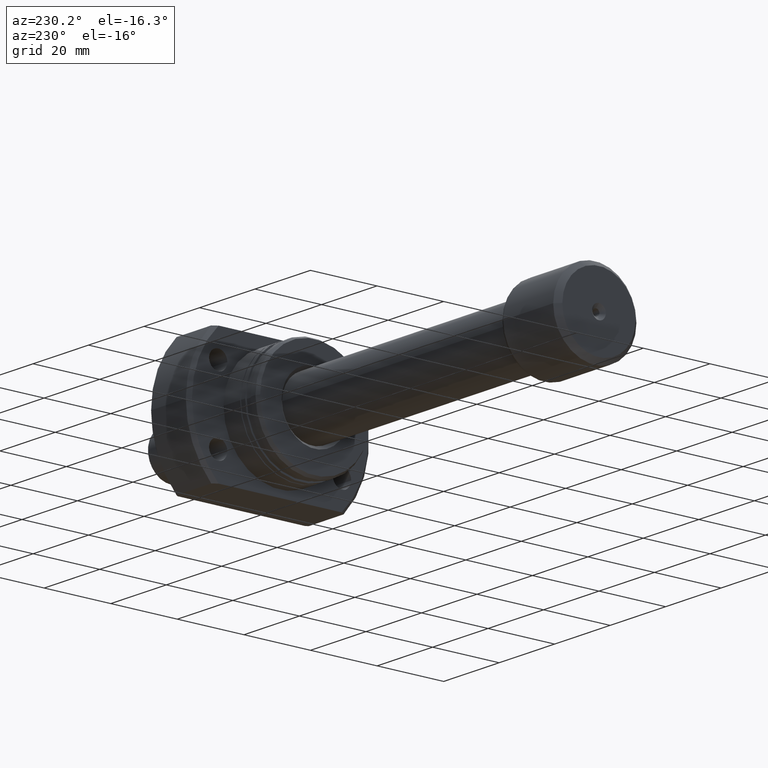
[diagram: clean part render]
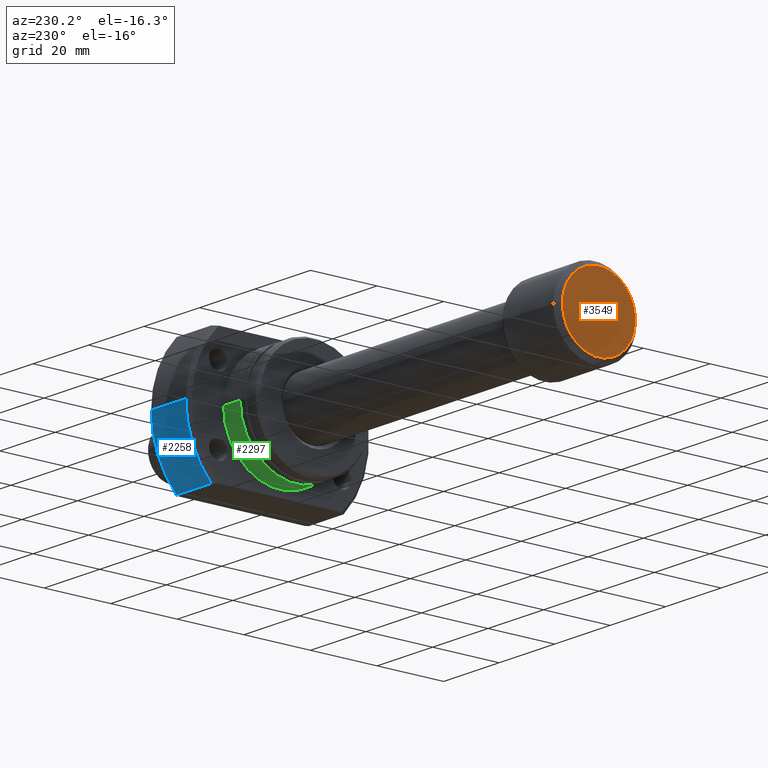
[diagram: same view with three faces highlighted in distinct colors, each labeled with its STEP entity id]
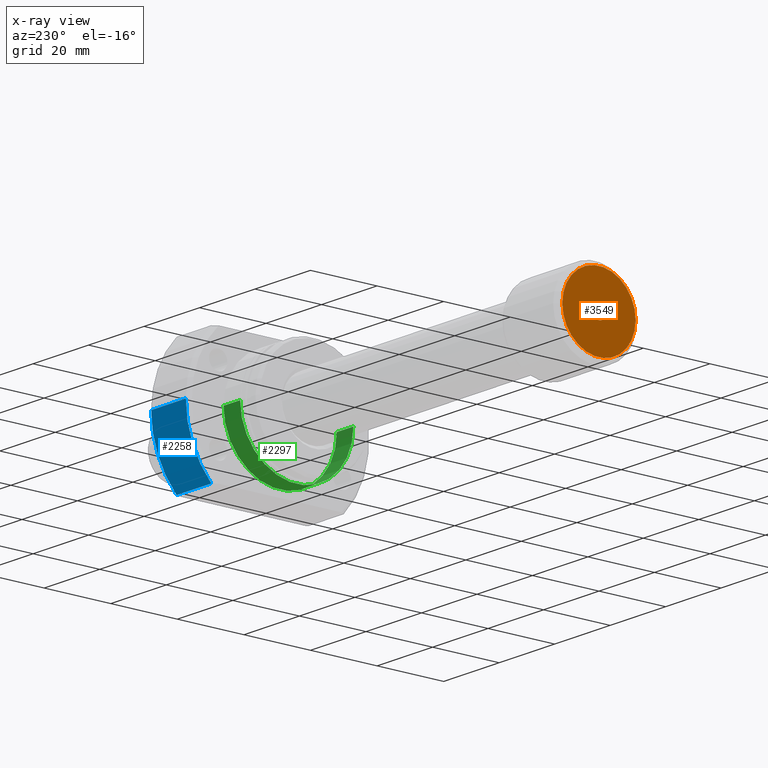
[diagram: x-ray of the same camera — body ghosted, the three highlighted faces saturated]
A machine part, auxiliary view with three faces highlighted in distinct colors.
The next image is the same camera in x-ray (body ghosted, the three faces saturated) — at least one of them is partly hidden behind the body in this view.
Their STEP definitions:

[orange] entity #3549 — the highlighted planar face has unit normal (-1, -0, 0).
#232 = DIRECTION ( 'NONE',  ( 1.069542322069063644E-17, -1.000000000000000000, 0.000000000000000000 ) ) ;
#282 = VERTEX_POINT ( 'NONE', #3673 ) ;
#332 = AXIS2_PLACEMENT_3D ( 'NONE', #2576, #2773, #232 ) ;
#531 = EDGE_CURVE ( 'NONE', #1279, #3342, #1863, .T. ) ;
#683 = AXIS2_PLACEMENT_3D ( 'NONE', #1072, #1295, #3312 ) ;
#810 = DIRECTION ( 'NONE',  ( 1.069542322069065647E-17, -1.000000000000000000, 0.000000000000000000 ) ) ;
#859 = DIRECTION ( 'NONE',  ( -1.000000000000000000, -1.069542322069065801E-17, -0.000000000000000000 ) ) ;
#902 = CARTESIAN_POINT ( 'NONE',  ( 6.147309118172456842E-16, 6.574807268726511244E-33, 0.000000000000000000 ) ) ;
#941 = DIRECTION ( 'NONE',  ( -1.000000000000000000, -1.069542322069065801E-17, 0.000000000000000000 ) ) ;
#1030 = CIRCLE ( 'NONE', #1986, 11.00000000000000178 ) ;
#1072 = CARTESIAN_POINT ( 'NONE',  ( 1.229461823634491368E-15, 1.314961453745302249E-32, 0.000000000000000000 ) ) ;
#1157 = FACE_OUTER_BOUND ( 'NONE', #2336, .T. ) ;
#1202 = CIRCLE ( 'NONE', #3285, 2.075000000000021494 ) ;
#1244 = EDGE_LOOP ( 'NONE', ( #2691, #2263 ) ) ;
#1279 = VERTEX_POINT ( 'NONE', #2607 ) ;
#1295 = DIRECTION ( 'NONE',  ( -1.000000000000000000, -1.069542322069065801E-17, -0.000000000000000000 ) ) ;
#1859 = EDGE_CURVE ( 'NONE', #3342, #1279, #1202, .T. ) ;
#1863 = CIRCLE ( 'NONE', #332, 2.075000000000021494 ) ;
#1986 = AXIS2_PLACEMENT_3D ( 'NONE', #2430, #859, #810 ) ;
#2079 = DIRECTION ( 'NONE',  ( 1.069542322069065801E-17, -1.000000000000000000, 0.000000000000000000 ) ) ;
#2183 = EDGE_CURVE ( 'NONE', #282, #2383, #1030, .T. ) ;
#2263 = ORIENTED_EDGE ( 'NONE', *, *, #1859, .T. ) ;
#2319 = ORIENTED_EDGE ( 'NONE', *, *, #2770, .T. ) ;
#2336 = EDGE_LOOP ( 'NONE', ( #3323, #2319 ) ) ;
#2383 = VERTEX_POINT ( 'NONE', #3589 ) ;
#2419 = AXIS2_PLACEMENT_3D ( 'NONE', #902, #941, #2079 ) ;
#2430 = CARTESIAN_POINT ( 'NONE',  ( 1.229461823634491368E-15, 1.314961453745302249E-32, 0.000000000000000000 ) ) ;
#2576 = CARTESIAN_POINT ( 'NONE',  ( 6.147309118172456842E-16, 0.000000000000000000, 0.000000000000000000 ) ) ;
#2607 = CARTESIAN_POINT ( 'NONE',  ( 6.147309118172456842E-16, 0.000000000000000000, 2.075000000000021494 ) ) ;
#2610 = PLANE ( 'NONE',  #2419 ) ;
#2642 = CARTESIAN_POINT ( 'NONE',  ( 6.147309118172456842E-16, 0.000000000000000000, 0.000000000000000000 ) ) ;
#2680 = DIRECTION ( 'NONE',  ( 1.069542322069063644E-17, -1.000000000000000000, 0.000000000000000000 ) ) ;
#2691 = ORIENTED_EDGE ( 'NONE', *, *, #531, .T. ) ;
#2770 = EDGE_CURVE ( 'NONE', #2383, #282, #2824, .T. ) ;
#2773 = DIRECTION ( 'NONE',  ( 1.000000000000000000, 1.069542322069065801E-17, 0.000000000000000000 ) ) ;
#2824 = CIRCLE ( 'NONE', #683, 11.00000000000000178 ) ;
#3134 = CARTESIAN_POINT ( 'NONE',  ( 6.147309118172456842E-16, 2.541142108230784202E-16, -2.075000000000021494 ) ) ;
#3200 = DIRECTION ( 'NONE',  ( 1.000000000000000000, 1.069542322069065801E-17, 0.000000000000000000 ) ) ;
#3285 = AXIS2_PLACEMENT_3D ( 'NONE', #2642, #3200, #2680 ) ;
#3312 = DIRECTION ( 'NONE',  ( 1.069542322069065647E-17, -1.000000000000000000, 0.000000000000000000 ) ) ;
#3323 = ORIENTED_EDGE ( 'NONE', *, *, #2183, .T. ) ;
#3342 = VERTEX_POINT ( 'NONE', #3134 ) ;
#3444 = FACE_BOUND ( 'NONE', #1244, .T. ) ;
#3549 = ADVANCED_FACE ( 'NONE', ( #3444, #1157 ), #2610, .T. ) ;
#3589 = CARTESIAN_POINT ( 'NONE',  ( 1.347111479062088602E-15, -11.00000000000000178, 1.438959988998140160E-15 ) ) ;
#3673 = CARTESIAN_POINT ( 'NONE',  ( 1.111812168206894135E-15, 11.00000000000000178, 0.000000000000000000 ) ) ;

[blue] entity #2258 — the highlighted cylindrical surface (partial cylindrical patch) has radius 27.5 mm, axis along (1, 0, 0).
#54 = VERTEX_POINT ( 'NONE', #420 ) ;
#108 = ORIENTED_EDGE ( 'NONE', *, *, #1424, .T. ) ;
#121 = DIRECTION ( 'NONE',  ( 0.000000000000000000, 1.000000000000000000, 0.000000000000000000 ) ) ;
#172 = CARTESIAN_POINT ( 'NONE',  ( 13.49999999999999112, 27.49999999999991473, 0.000000000000000000 ) ) ;
#267 = LINE ( 'NONE', #3621, #3585 ) ;
#302 = ORIENTED_EDGE ( 'NONE', *, *, #3068, .F. ) ;
#305 = CARTESIAN_POINT ( 'NONE',  ( 26.50000000000000711, 27.49999999999991473, 0.000000000000000000 ) ) ;
#311 = CARTESIAN_POINT ( 'NONE',  ( 26.00000000000007461, 19.88089535207093306, -18.99999999999999645 ) ) ;
#346 = CARTESIAN_POINT ( 'NONE',  ( 26.00000000000008882, 27.49999999999991473, 0.000000000000000000 ) ) ;
#416 = CARTESIAN_POINT ( 'NONE',  ( 13.49999999999999112, 1.247753342527491952E-16, 0.000000000000000000 ) ) ;
#420 = CARTESIAN_POINT ( 'NONE',  ( 13.49999999999998757, 19.88089535207129543, -18.99999999999999645 ) ) ;
#786 = EDGE_LOOP ( 'NONE', ( #108, #1063, #302, #2490 ) ) ;
#803 = AXIS2_PLACEMENT_3D ( 'NONE', #3504, #2118, #121 ) ;
#1063 = ORIENTED_EDGE ( 'NONE', *, *, #3289, .T. ) ;
#1234 = DIRECTION ( 'NONE',  ( 0.000000000000000000, 1.000000000000000000, 0.000000000000000000 ) ) ;
#1254 = DIRECTION ( 'NONE',  ( 1.000000000000000000, 9.242617352055502386E-18, -0.000000000000000000 ) ) ;
#1424 = EDGE_CURVE ( 'NONE', #54, #2094, #3524, .T. ) ;
#1459 = CYLINDRICAL_SURFACE ( 'NONE', #803, 27.49999999999991473 ) ;
#1523 = DIRECTION ( 'NONE',  ( 1.000000000000000000, 9.242617352055502386E-18, -0.000000000000000000 ) ) ;
#1526 = EDGE_CURVE ( 'NONE', #54, #2819, #267, .T. ) ;
#2020 = VERTEX_POINT ( 'NONE', #346 ) ;
#2082 = CARTESIAN_POINT ( 'NONE',  ( 26.00000000000008882, 2.403080511534438786E-16, 0.000000000000000000 ) ) ;
#2094 = VERTEX_POINT ( 'NONE', #172 ) ;
#2118 = DIRECTION ( 'NONE',  ( 1.000000000000000000, 9.242617352055502386E-18, -0.000000000000000000 ) ) ;
#2256 = LINE ( 'NONE', #305, #2294 ) ;
#2258 = ADVANCED_FACE ( 'NONE', ( #3423 ), #1459, .T. ) ;
#2294 = VECTOR ( 'NONE', #3422, 1000.000000000000000 ) ;
#2400 = DIRECTION ( 'NONE',  ( 0.000000000000000000, 1.000000000000000000, 0.000000000000000000 ) ) ;
#2490 = ORIENTED_EDGE ( 'NONE', *, *, #1526, .F. ) ;
#2655 = CIRCLE ( 'NONE', #2950, 27.49999999999991473 ) ;
#2819 = VERTEX_POINT ( 'NONE', #311 ) ;
#2950 = AXIS2_PLACEMENT_3D ( 'NONE', #2082, #1523, #1234 ) ;
#3050 = DIRECTION ( 'NONE',  ( 1.000000000000000000, -2.886466111666351885E-14, -0.000000000000000000 ) ) ;
#3068 = EDGE_CURVE ( 'NONE', #2819, #2020, #2655, .T. ) ;
#3289 = EDGE_CURVE ( 'NONE', #2094, #2020, #2256, .T. ) ;
#3348 = AXIS2_PLACEMENT_3D ( 'NONE', #416, #1254, #2400 ) ;
#3422 = DIRECTION ( 'NONE',  ( 1.000000000000000000, 9.242617352055502386E-18, -0.000000000000000000 ) ) ;
#3423 = FACE_OUTER_BOUND ( 'NONE', #786, .T. ) ;
#3504 = CARTESIAN_POINT ( 'NONE',  ( 26.50000000000000711, 2.449293598294708880E-16, 0.000000000000000000 ) ) ;
#3524 = CIRCLE ( 'NONE', #3348, 27.49999999999991473 ) ;
#3585 = VECTOR ( 'NONE', #3050, 1000.000000000000000 ) ;
#3621 = CARTESIAN_POINT ( 'NONE',  ( -2.151057110211240797E-13, 19.88089535207168268, -18.99999999999999645 ) ) ;

[green] entity #2297 — the highlighted cylindrical surface (partial cylindrical patch) has radius 17 mm, axis along (1, 0, 0).
#57 = DIRECTION ( 'NONE',  ( 1.000000000000000000, 9.242617352055502386E-18, -0.000000000000000000 ) ) ;
#79 = DIRECTION ( 'NONE',  ( 1.000000000000000000, 9.242617352055502386E-18, -0.000000000000000000 ) ) ;
#82 = VERTEX_POINT ( 'NONE', #2689 ) ;
#201 = AXIS2_PLACEMENT_3D ( 'NONE', #1229, #2637, #1537 ) ;
#335 = VECTOR ( 'NONE', #2328, 1000.000000000000000 ) ;
#340 = CIRCLE ( 'NONE', #2225, 16.99999999999999645 ) ;
#666 = LINE ( 'NONE', #3527, #335 ) ;
#827 = ORIENTED_EDGE ( 'NONE', *, *, #3495, .T. ) ;
#1044 = VERTEX_POINT ( 'NONE', #1597 ) ;
#1169 = CARTESIAN_POINT ( 'NONE',  ( 12.50000000000000178, 16.99999999999999645, 0.000000000000000000 ) ) ;
#1172 = CYLINDRICAL_SURFACE ( 'NONE', #1445, 16.99999999999999645 ) ;
#1211 = CARTESIAN_POINT ( 'NONE',  ( 26.50000000000000711, 16.99999999999999645, 0.000000000000000000 ) ) ;
#1229 = CARTESIAN_POINT ( 'NONE',  ( 6.499999999999783284, 6.007701278835876331E-17, 0.000000000000000000 ) ) ;
#1402 = EDGE_CURVE ( 'NONE', #82, #2648, #340, .T. ) ;
#1406 = EDGE_LOOP ( 'NONE', ( #2536, #1621, #827, #1972 ) ) ;
#1410 = DIRECTION ( 'NONE',  ( 0.000000000000000000, 1.000000000000000000, 0.000000000000000000 ) ) ;
#1445 = AXIS2_PLACEMENT_3D ( 'NONE', #1756, #79, #3196 ) ;
#1537 = DIRECTION ( 'NONE',  ( 0.000000000000000000, 1.000000000000000000, 0.000000000000000000 ) ) ;
#1597 = CARTESIAN_POINT ( 'NONE',  ( 6.499999999999783284, -16.99999999999999645, 2.081899558550499885E-15 ) ) ;
#1621 = ORIENTED_EDGE ( 'NONE', *, *, #2024, .T. ) ;
#1756 = CARTESIAN_POINT ( 'NONE',  ( 26.50000000000000711, 2.449293598294708880E-16, 0.000000000000000000 ) ) ;
#1881 = EDGE_CURVE ( 'NONE', #1044, #82, #666, .T. ) ;
#1939 = VECTOR ( 'NONE', #57, 1000.000000000000000 ) ;
#1972 = ORIENTED_EDGE ( 'NONE', *, *, #1402, .F. ) ;
#2024 = EDGE_CURVE ( 'NONE', #1044, #3392, #2402, .T. ) ;
#2040 = LINE ( 'NONE', #1211, #1939 ) ;
#2070 = DIRECTION ( 'NONE',  ( 1.000000000000000000, 9.242617352055502386E-18, -0.000000000000000000 ) ) ;
#2225 = AXIS2_PLACEMENT_3D ( 'NONE', #3485, #2070, #1410 ) ;
#2297 = ADVANCED_FACE ( 'NONE', ( #3453 ), #1172, .T. ) ;
#2328 = DIRECTION ( 'NONE',  ( 1.000000000000000000, 9.242617352055502386E-18, -0.000000000000000000 ) ) ;
#2402 = CIRCLE ( 'NONE', #201, 16.99999999999999645 ) ;
#2511 = CARTESIAN_POINT ( 'NONE',  ( 6.499999999999783284, 16.99999999999999645, 0.000000000000000000 ) ) ;
#2536 = ORIENTED_EDGE ( 'NONE', *, *, #1881, .F. ) ;
#2637 = DIRECTION ( 'NONE',  ( 1.000000000000000000, 9.242617352055502386E-18, -0.000000000000000000 ) ) ;
#2648 = VERTEX_POINT ( 'NONE', #1169 ) ;
#2689 = CARTESIAN_POINT ( 'NONE',  ( 12.50000000000000178, -16.99999999999999645, 2.081899558550499885E-15 ) ) ;
#3196 = DIRECTION ( 'NONE',  ( 0.000000000000000000, 1.000000000000000000, 0.000000000000000000 ) ) ;
#3392 = VERTEX_POINT ( 'NONE', #2511 ) ;
#3453 = FACE_OUTER_BOUND ( 'NONE', #1406, .T. ) ;
#3485 = CARTESIAN_POINT ( 'NONE',  ( 12.50000000000000178, 1.155327169006937960E-16, 0.000000000000000000 ) ) ;
#3495 = EDGE_CURVE ( 'NONE', #3392, #2648, #2040, .T. ) ;
#3527 = CARTESIAN_POINT ( 'NONE',  ( 26.50000000000000711, -16.99999999999999645, 2.081899558550499885E-15 ) ) ;